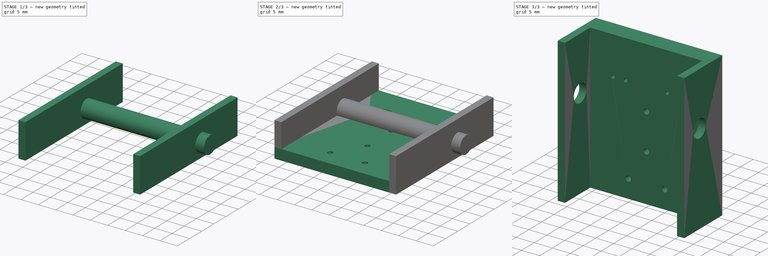
[diagram: build sequence overview — one tinted view per stage of 3, left to right]
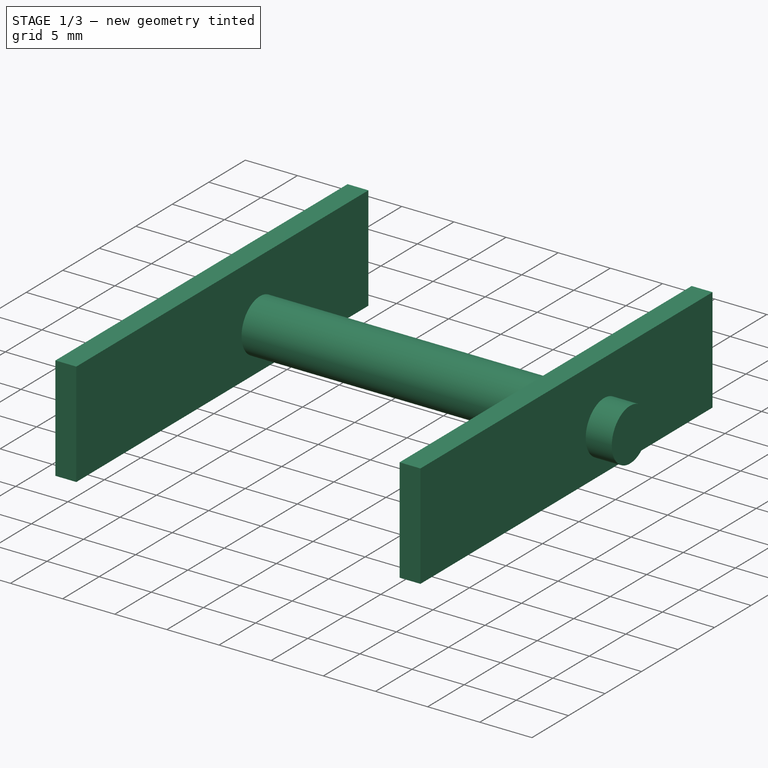
[diagram: stage 1 of 3 — iso view after this stage's code; geometry added in this stage tinted green]
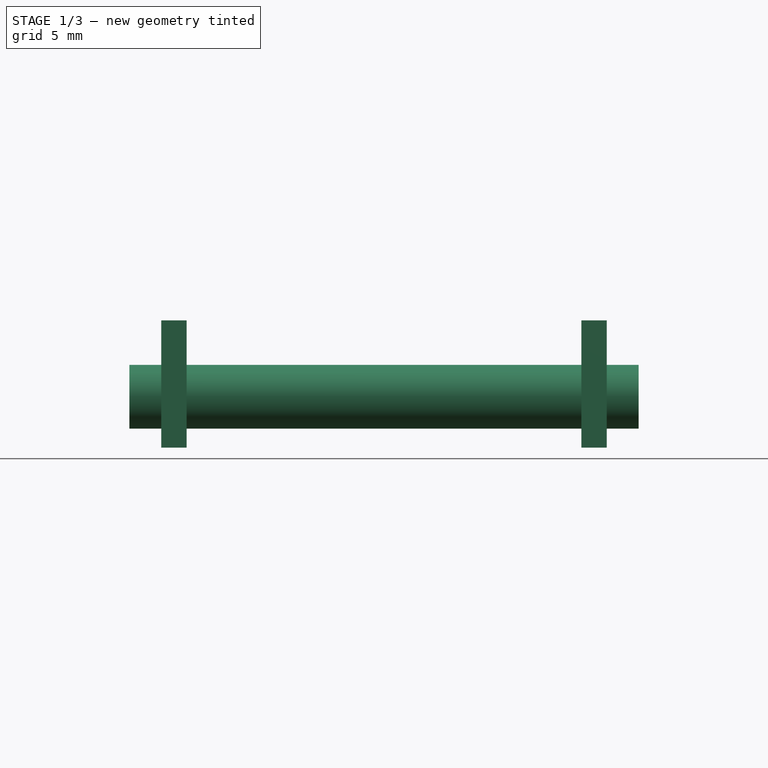
[diagram: stage 1 of 3 — front view after this stage's code; geometry added in this stage tinted green]
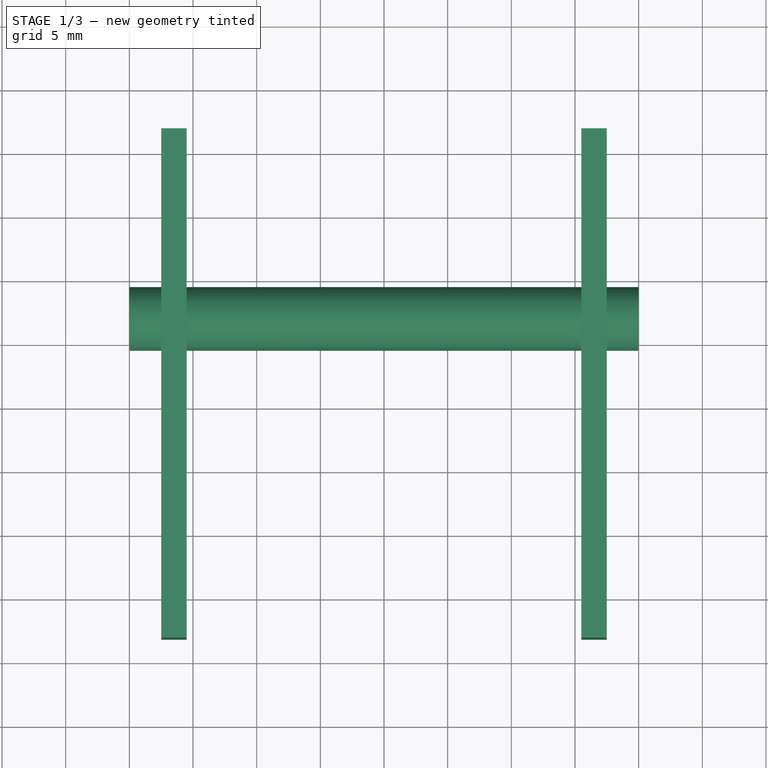
[diagram: stage 1 of 3 — top view after this stage's code; geometry added in this stage tinted green]
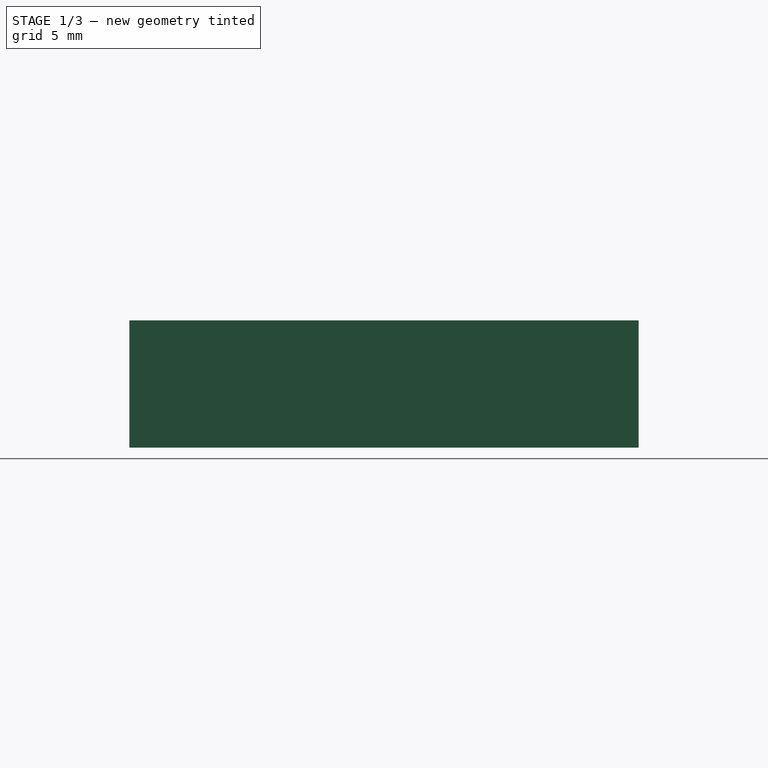
[diagram: stage 1 of 3 — right view after this stage's code; geometry added in this stage tinted green]
FCSTD DOCUMENT  (FreeCAD 0.18R16131 (Git))
Label: Franky
License: Public Domain
LicenseURL: http://en.wikipedia.org/wiki/Public_domain
objects: Sketcher::SketchObject×2, PartDesign::Pad×2, PartDesign::Body×2, Part::MultiFuse×2, Part::Box×2, Part::Cylinder×1, Part::Cut×1
note: 14 computed .brp shape members not serialized (recipe doc carries the construction recipe); baked Part::Feature solids carry a one-line shape summary decoded from their .brp

FEATURE [Part::Box] Box  label="Cubo"
  AttacherType = Attacher::AttachEngine3D
  Height = 10
  Length = 2
  Placement = pos=(15.5,-18.1329,2.1e-15) rot=(0,0,1;0rad)
  Width = 40
FEATURE [Part::Box] Box001  label="Cubo001"
  AttacherType = Attacher::AttachEngine3D
  Height = 10
  Length = 2
  Placement = pos=(-17.5,-18.13,2.1e-15) rot=(0,0,1;0rad)
  Width = 40
FEATURE [Part::Cylinder] Cylinder  label="Cilindro"
  Angle = 360
  AttacherType = Attacher::AttachEngine3D
  Height = 40
  Placement = pos=(-20,7,4) rot=(0,1,0;1.5708rad)
  Radius = 2.5
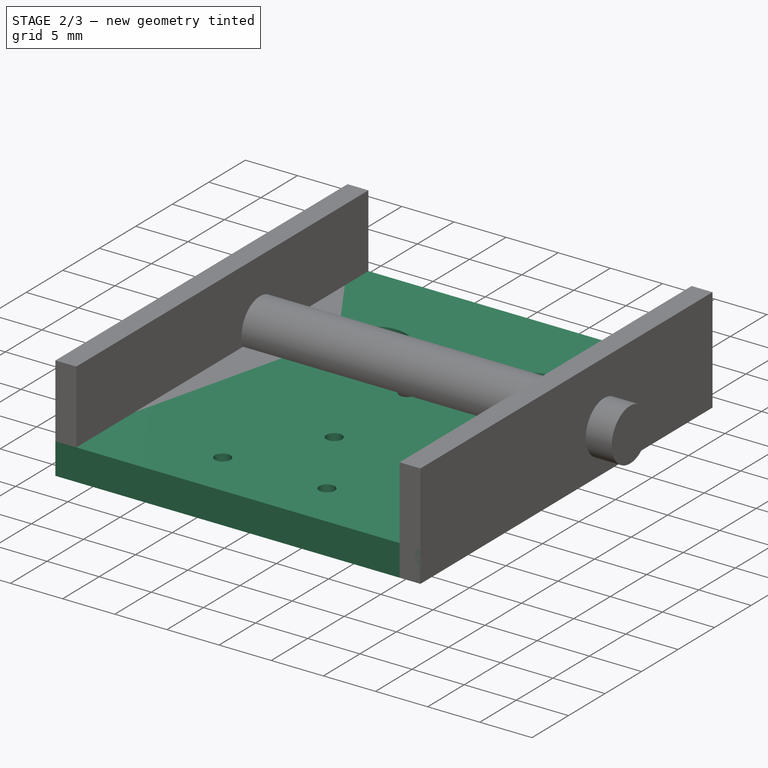
[diagram: stage 2 of 3 — iso view after this stage's code; geometry added in this stage tinted green]
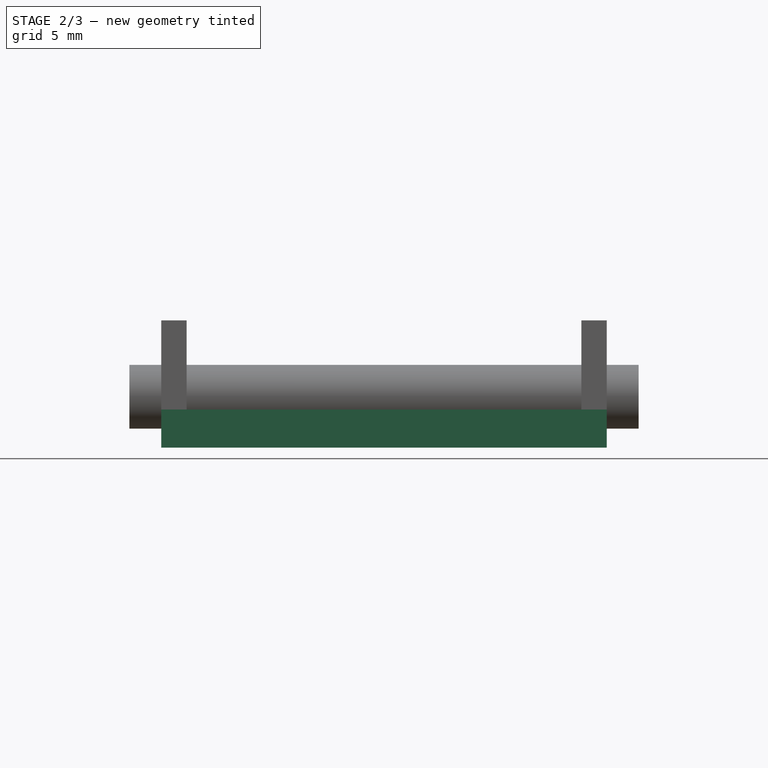
[diagram: stage 2 of 3 — front view after this stage's code; geometry added in this stage tinted green]
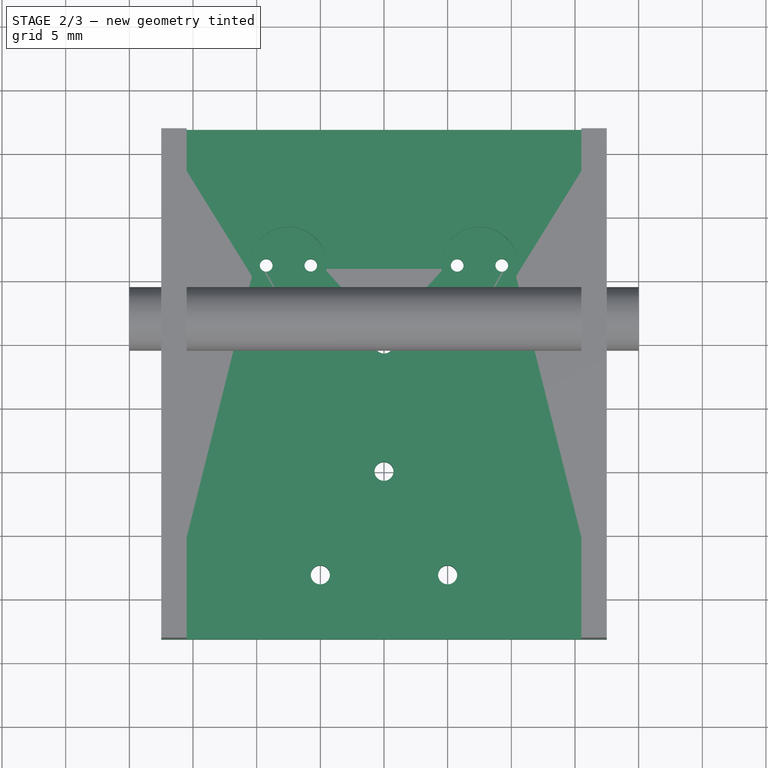
[diagram: stage 2 of 3 — top view after this stage's code; geometry added in this stage tinted green]
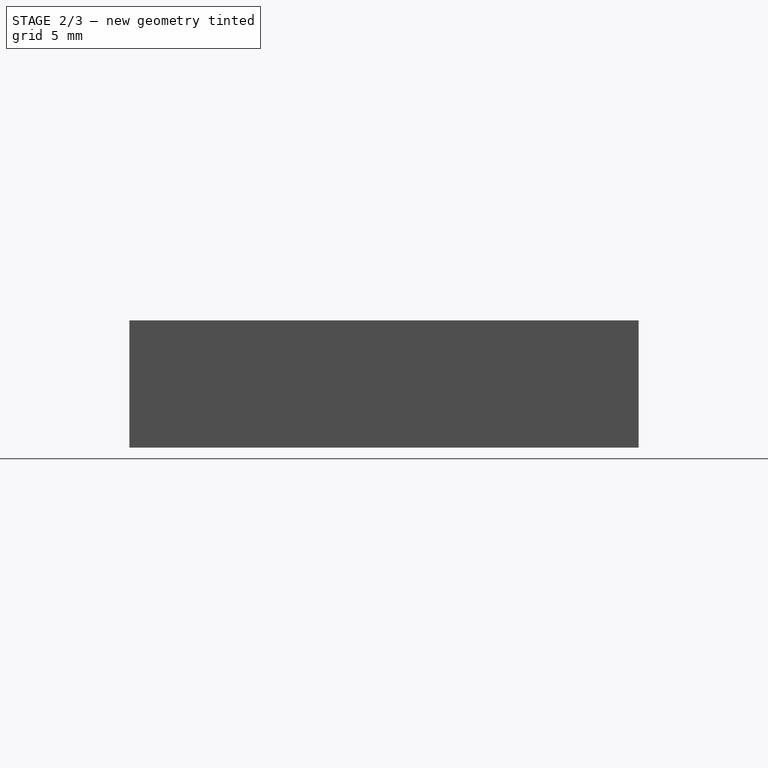
[diagram: stage 2 of 3 — right view after this stage's code; geometry added in this stage tinted green]
FEATURE [Sketcher::SketchObject] Sketch
  MapMode = 5
  Support = -> [XY_Plane]
  sketch-geometry (10):
    g0: Circle CenterX=-7.5 CenterY=11.2461 CenterZ=0 NormalX=0 NormalY=0 NormalZ=1 AngleXU=0 Radius=3
    g1: Circle CenterX=7.5 CenterY=11.2461 CenterZ=0 NormalX=0 NormalY=0 NormalZ=1 AngleXU=0 Radius=3
    g2: Circle CenterX=0 CenterY=5.04928 CenterZ=0 NormalX=0 NormalY=0 NormalZ=1 AngleXU=0 Radius=0.75
    g3: Circle CenterX=0 CenterY=-4.95072 CenterZ=0 NormalX=0 NormalY=0 NormalZ=1 AngleXU=0 Radius=0.75
    g4: Circle CenterX=-5 CenterY=-13.0826 CenterZ=0 NormalX=0 NormalY=0 NormalZ=1 AngleXU=0 Radius=0.75
    g5: Circle CenterX=5 CenterY=-13.0826 CenterZ=0 NormalX=0 NormalY=0 NormalZ=1 AngleXU=0 Radius=0.75
    g6: LineSegment StartX=-17.5 StartY=21.8671 StartZ=0 EndX=17.5 EndY=21.8671 EndZ=0
    g7: LineSegment StartX=17.5 StartY=21.8671 StartZ=0 EndX=17.5 EndY=-18.1329 EndZ=0
    g8: LineSegment StartX=17.5 StartY=-18.1329 StartZ=0 EndX=-17.5 EndY=-18.1329 EndZ=0
    g9: LineSegment StartX=-17.5 StartY=-18.1329 StartZ=0 EndX=-17.5 EndY=21.8671 EndZ=0
  constraints (23):
    c: Radius(g1) = 3
    c: Radius(g0) = 3
    c: Symmetric(g0,g1,g-2)
    c: DistanceX(g0,g1) = 15
    c: PointOnObject(g2,g-2)
    c: Radius(g2) = 0.75
    c: Radius(g3) = 0.75
    c: DistanceY(g3,g2) = 10
    c: Symmetric(g5,g4,g-2)
    c: Radius(g5) = 0.75
    c: Equal(g5,g4)
    c: DistanceX(g4,g5) = 10
    c: Coincident(g6,g7)
    c: Coincident(g7,g8)
    c: Coincident(g8,g9)
    c: Coincident(g9,g6)
    c: Horizontal(g8)
    c: Vertical(g7)
    c: Vertical(g9)
    c: Symmetric(g6,g6,g-2)
    c: DistanceX(g6,g6) = 35
    c: DistanceY(g7,g6) = 40
    c: PointOnObject(g3,g-2)
FEATURE [PartDesign::Pad] Pad
  Length = 3
  Length2 = 100
  Profile = -> Sketch
  Refine = true
  Type = 0
FEATURE [PartDesign::Body] Body
  Group = -> [Sketch,Pad]
  Origin = -> Origin
  Placement = pos=(0,0,2) rot=(0,0,1;0rad)
  Tip = -> Pad
FEATURE [Sketcher::SketchObject] Sketch001
  MapMode = 5
  Support = -> [XY_Plane003]
  sketch-geometry (12):
    g0: Circle CenterX=-5.75 CenterY=11.2461 CenterZ=0 NormalX=0 NormalY=0 NormalZ=1 AngleXU=0 Radius=0.492907
    g1: Circle CenterX=-9.25 CenterY=11.2461 CenterZ=0 NormalX=0 NormalY=0 NormalZ=1 AngleXU=0 Radius=0.5
    g2: Circle CenterX=0 CenterY=5.04928 CenterZ=0 NormalX=0 NormalY=0 NormalZ=1 AngleXU=0 Radius=0.750705
    g3: Circle CenterX=5.75 CenterY=11.2461 CenterZ=0 NormalX=0 NormalY=0 NormalZ=1 AngleXU=0 Radius=0.5
    g4: Circle CenterX=9.25 CenterY=11.2461 CenterZ=0 NormalX=0 NormalY=0 NormalZ=1 AngleXU=0 Radius=0.5
    g5: Circle CenterX=0 CenterY=-4.95072 CenterZ=0 NormalX=0 NormalY=0 NormalZ=1 AngleXU=0 Radius=0.75
    g6: Circle CenterX=5 CenterY=-13.0826 CenterZ=0 NormalX=0 NormalY=0 NormalZ=1 AngleXU=0 Radius=0.75
    g7: Circle CenterX=-5 CenterY=-13.0826 CenterZ=0 NormalX=0 NormalY=0 NormalZ=1 AngleXU=0 Radius=0.75
    g8: LineSegment StartX=-17.5 StartY=21.8671 StartZ=0 EndX=17.5 EndY=21.8671 EndZ=0
    g9: LineSegment StartX=17.5 StartY=21.8671 StartZ=0 EndX=17.5 EndY=-18.1329 EndZ=0
    g10: LineSegment StartX=17.5 StartY=-18.1329 StartZ=0 EndX=-17.5 EndY=-18.1329 EndZ=0
    g11: LineSegment StartX=-17.5 StartY=-18.1329 StartZ=0 EndX=-17.5 EndY=21.8671 EndZ=0
  constraints (8):
    c: Coincident(g8,g9)
    c: Coincident(g9,g10)
    c: Coincident(g10,g11)
    c: Coincident(g11,g8)
    c: Horizontal(g8)
    c: Horizontal(g10)
    c: Vertical(g9)
    c: Vertical(g11)
FEATURE [PartDesign::Pad] Pad001
  Length = 2
  Length2 = 100
  Profile = -> Sketch001
  Refine = true
  Type = 0
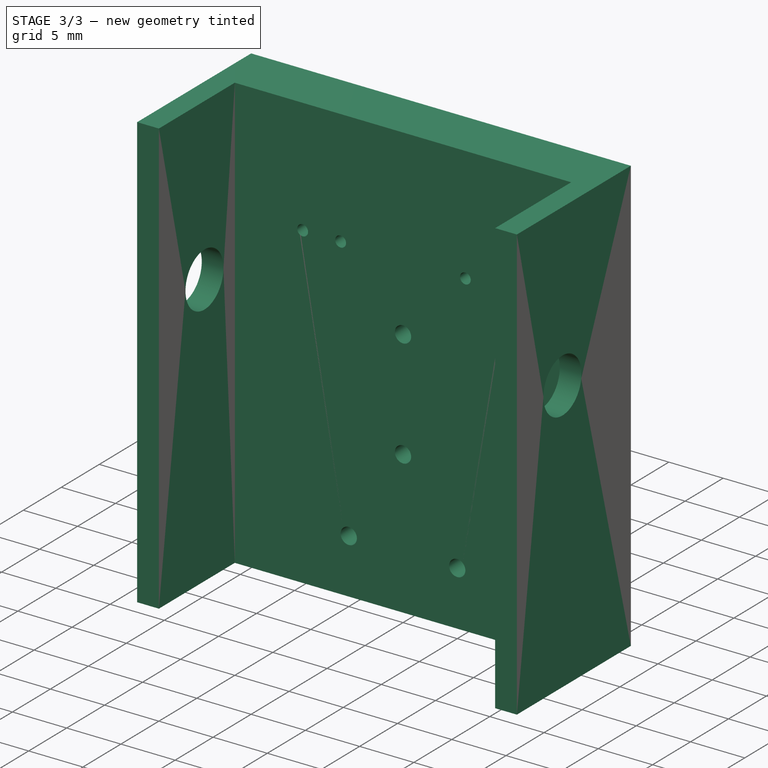
[diagram: stage 3 of 3 — iso view after this stage's code; geometry added in this stage tinted green]
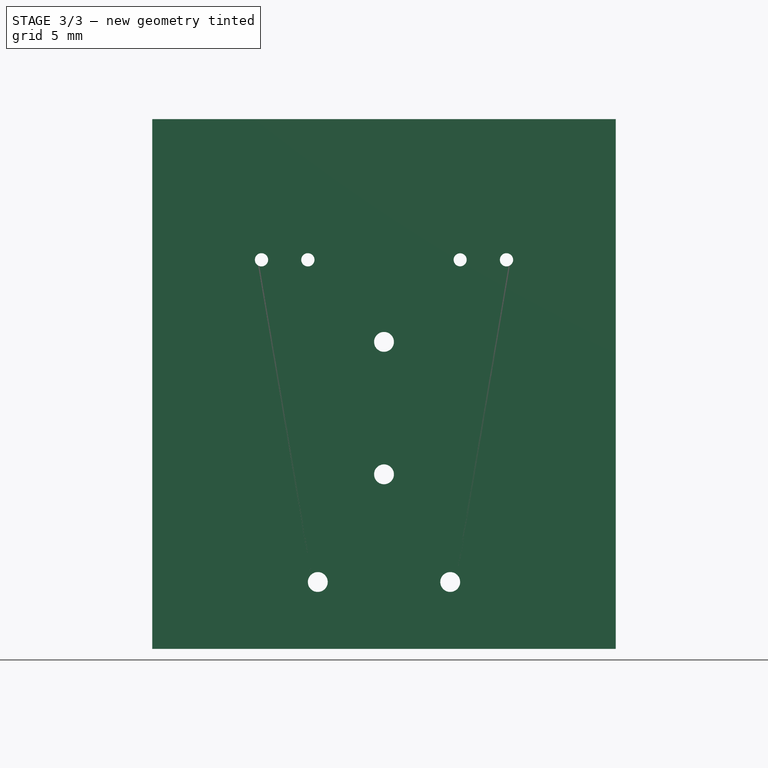
[diagram: stage 3 of 3 — front view after this stage's code; geometry added in this stage tinted green]
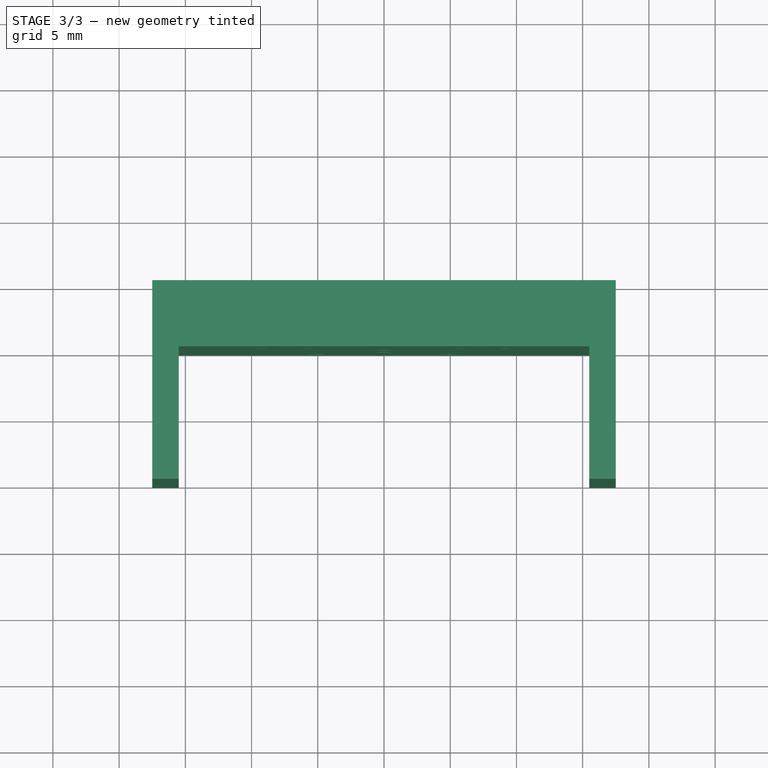
[diagram: stage 3 of 3 — top view after this stage's code; geometry added in this stage tinted green]
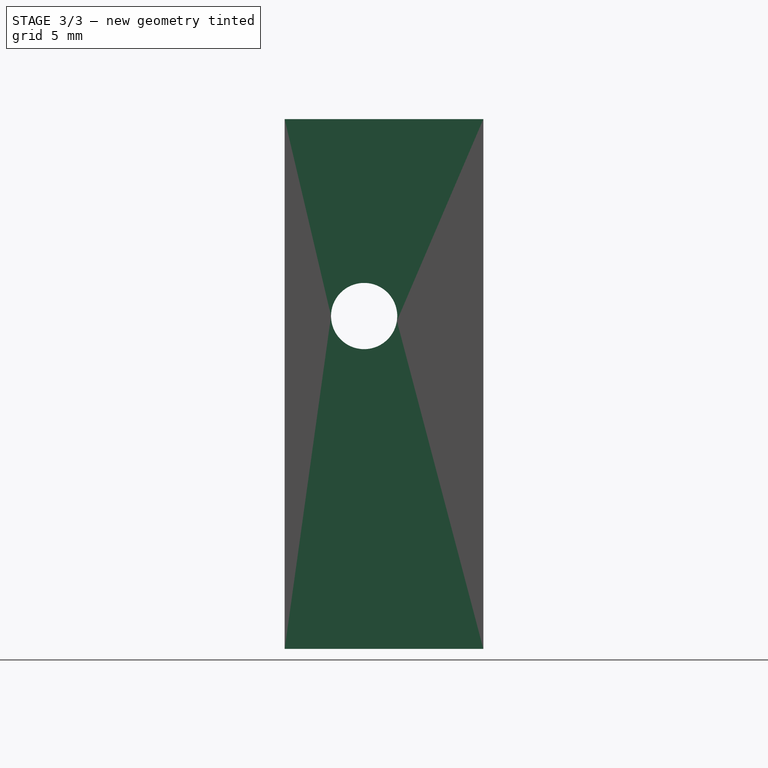
[diagram: stage 3 of 3 — right view after this stage's code; geometry added in this stage tinted green]
FEATURE [PartDesign::Body] Body003
  Group = -> [Sketch001,Pad001]
  Origin = -> Origin003
  Tip = -> Pad001
FEATURE [Part::MultiFuse] Fusion
  Placement = pos=(0,0,0) rot=(0,1,0;3.14159rad)
  Refine = true
  Shapes = -> [Body,Body003]
FEATURE [Part::MultiFuse] Fusion001
  Refine = true
  Shapes = -> [Fusion,Box,Box001]
FEATURE [Part::Cut] Cut  label="Franky"
  Base = -> Fusion001
  Placement = pos=(0,0,0) rot=(1,0,0;1.5708rad)
  Refine = true
  Tool = -> Cylinder
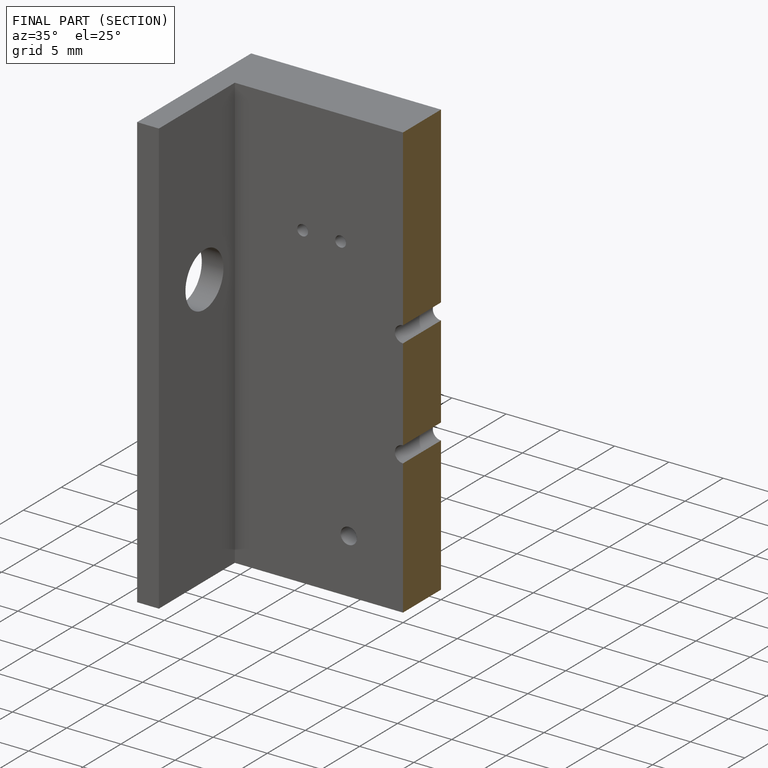
[diagram: finished part — half-section view (interior)]
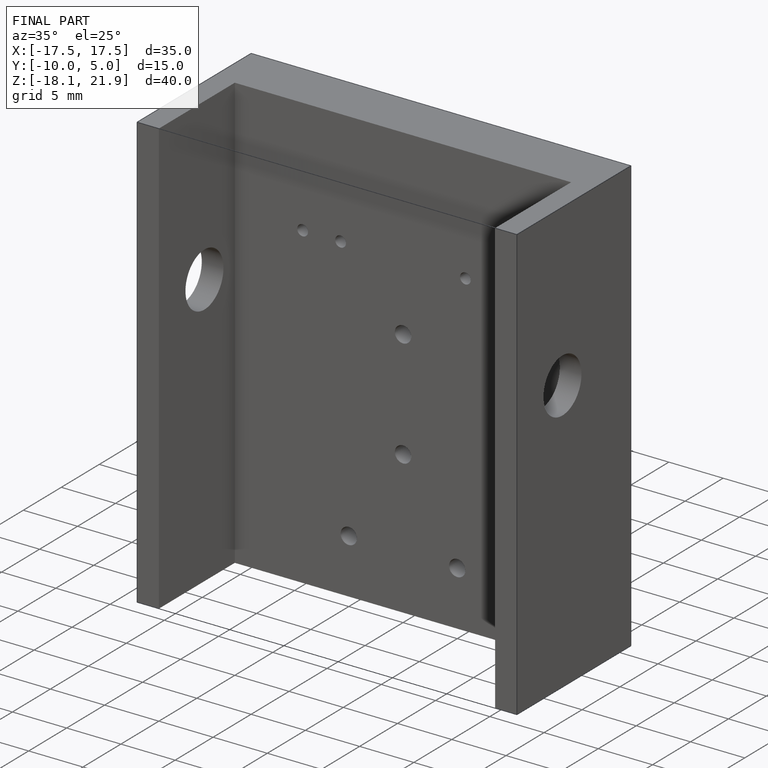
[diagram: finished part — iso view with bounding-box wireframe]
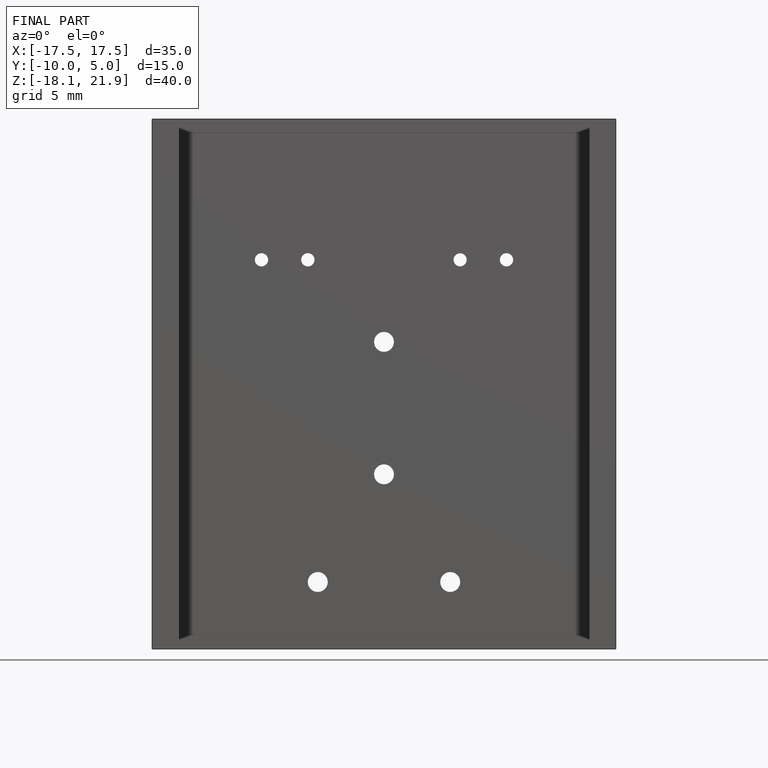
[diagram: finished part — front view with bounding-box wireframe]
